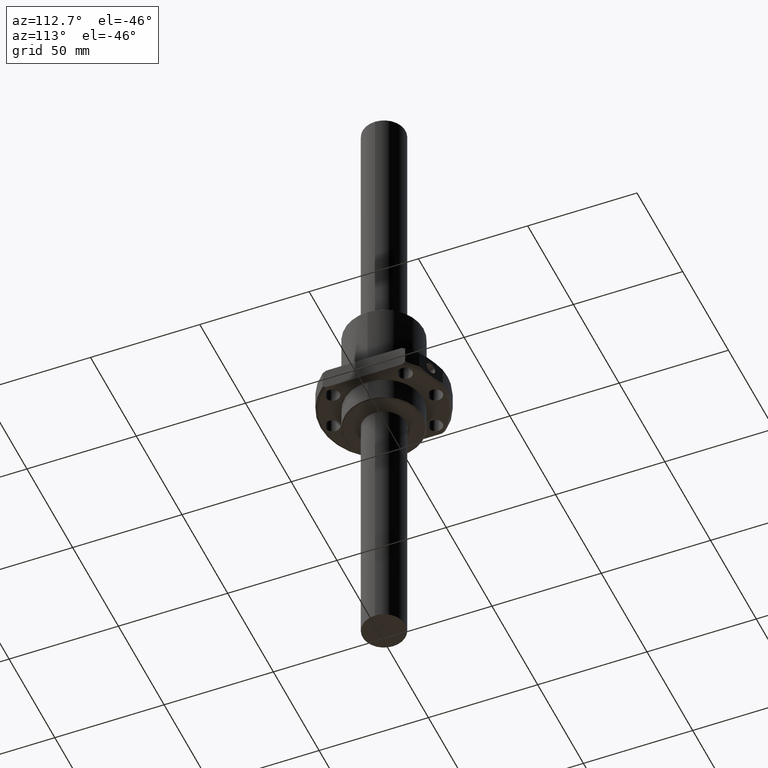
[diagram: clean part render]
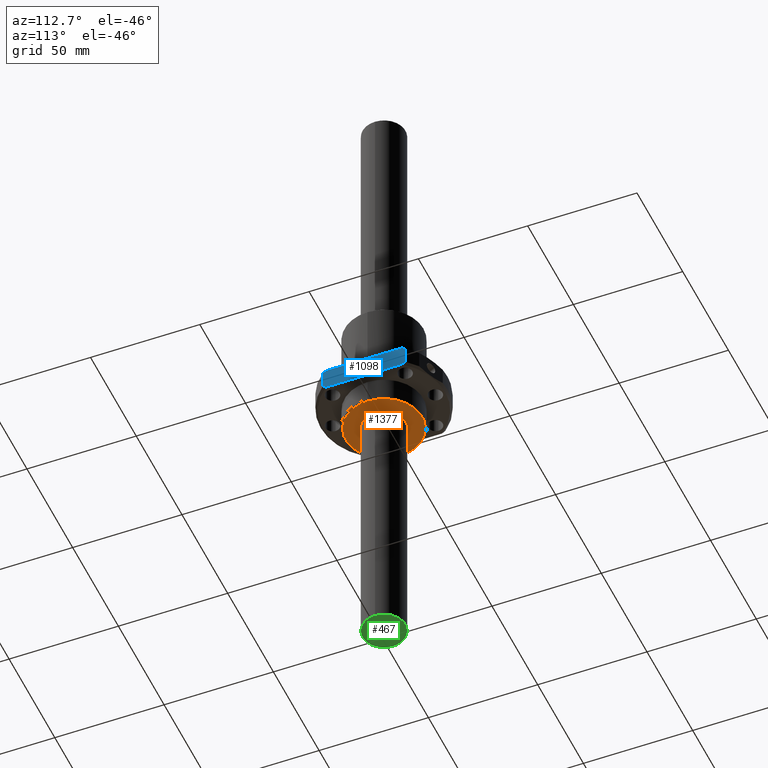
[diagram: same view with three faces highlighted in distinct colors, each labeled with its STEP entity id]
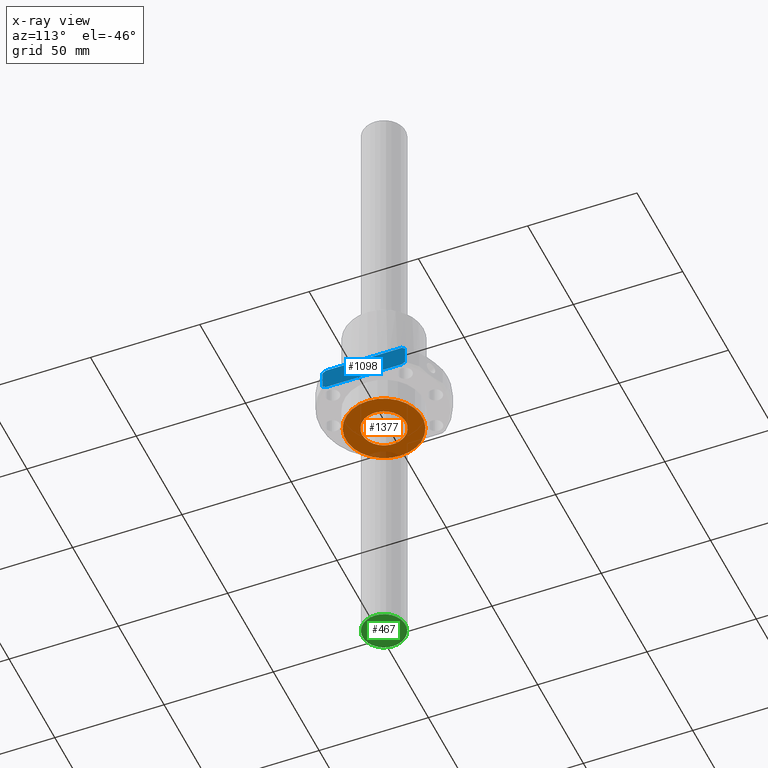
[diagram: x-ray of the same camera — body ghosted, the three highlighted faces saturated]
A machine part, auxiliary view with three faces highlighted in distinct colors.
The next image is the same camera in x-ray (body ghosted, the three faces saturated) — at least one of them is partly hidden behind the body in this view.
Their STEP definitions:

[orange] entity #1377 — the highlighted planar face has unit normal (0, 0, 1).
#61 = DIRECTION ( 'NONE',  ( 0.0000000000000000000, 0.0000000000000000000, -1.000000000000000000 ) ) ;
#259 = VERTEX_POINT ( 'NONE', #1360 ) ;
#271 = CARTESIAN_POINT ( 'NONE',  ( 0.0000000000000000000, 0.0000000000000000000, 0.0000000000000000000 ) ) ;
#466 = ORIENTED_EDGE ( 'NONE', *, *, #1770, .F. ) ;
#473 = VERTEX_POINT ( 'NONE', #1356 ) ;
#522 = ORIENTED_EDGE ( 'NONE', *, *, #1653, .F. ) ;
#534 = CIRCLE ( 'NONE', #565, 17.50000000000000000 ) ;
#565 = AXIS2_PLACEMENT_3D ( 'NONE', #271, #61, #1740 ) ;
#686 = CIRCLE ( 'NONE', #1188, 17.50000000000000000 ) ;
#719 = CARTESIAN_POINT ( 'NONE',  ( 0.0000000000000000000, 0.0000000000000000000, 0.0000000000000000000 ) ) ;
#740 = VERTEX_POINT ( 'NONE', #1357 ) ;
#756 = VERTEX_POINT ( 'NONE', #1851 ) ;
#774 = EDGE_LOOP ( 'NONE', ( #466, #931 ) ) ;
#877 = DIRECTION ( 'NONE',  ( 0.0000000000000000000, -1.000000000000000000, -3.469446951953615200E-016 ) ) ;
#905 = AXIS2_PLACEMENT_3D ( 'NONE', #1696, #1516, #1331 ) ;
#931 = ORIENTED_EDGE ( 'NONE', *, *, #1657, .F. ) ;
#984 = CIRCLE ( 'NONE', #1295, 10.00000000000000000 ) ;
#1009 = FACE_OUTER_BOUND ( 'NONE', #1674, .T. ) ;
#1066 = DIRECTION ( 'NONE',  ( 0.0000000000000000000, -3.469446951953614700E-016, 1.000000000000000000 ) ) ;
#1084 = EDGE_CURVE ( 'NONE', #473, #740, #534, .T. ) ;
#1104 = FACE_BOUND ( 'NONE', #774, .T. ) ;
#1132 = CIRCLE ( 'NONE', #1702, 10.00000000000000000 ) ;
#1188 = AXIS2_PLACEMENT_3D ( 'NONE', #719, #1628, #1454 ) ;
#1269 = CARTESIAN_POINT ( 'NONE',  ( 0.0000000000000000000, -1.873501354054951700E-014, 0.0000000000000000000 ) ) ;
#1295 = AXIS2_PLACEMENT_3D ( 'NONE', #1269, #1066, #877 ) ;
#1321 = DIRECTION ( 'NONE',  ( 0.0000000000000000000, -1.000000000000000000, -3.469446951953615200E-016 ) ) ;
#1331 = DIRECTION ( 'NONE',  ( -1.000000000000000000, 0.0000000000000000000, 0.0000000000000000000 ) ) ;
#1356 = CARTESIAN_POINT ( 'NONE',  ( -17.50000000000000000, 0.0000000000000000000, 0.0000000000000000000 ) ) ;
#1357 = CARTESIAN_POINT ( 'NONE',  ( 17.50000000000000000, 2.173748068486552000E-015, 0.0000000000000000000 ) ) ;
#1360 = CARTESIAN_POINT ( 'NONE',  ( 0.0000000000000000000, -10.00000000000002000, -3.469446951953615000E-015 ) ) ;
#1377 = ADVANCED_FACE ( 'NONE', ( #1104, #1009 ), #1864, .F. ) ;
#1452 = ORIENTED_EDGE ( 'NONE', *, *, #1084, .F. ) ;
#1454 = DIRECTION ( 'NONE',  ( -1.000000000000000000, 0.0000000000000000000, 0.0000000000000000000 ) ) ;
#1502 = DIRECTION ( 'NONE',  ( 0.0000000000000000000, -3.469446951953614700E-016, 1.000000000000000000 ) ) ;
#1516 = DIRECTION ( 'NONE',  ( 0.0000000000000000000, 0.0000000000000000000, -1.000000000000000000 ) ) ;
#1628 = DIRECTION ( 'NONE',  ( 0.0000000000000000000, 0.0000000000000000000, -1.000000000000000000 ) ) ;
#1653 = EDGE_CURVE ( 'NONE', #740, #473, #686, .T. ) ;
#1657 = EDGE_CURVE ( 'NONE', #756, #259, #984, .T. ) ;
#1674 = EDGE_LOOP ( 'NONE', ( #1452, #522 ) ) ;
#1685 = CARTESIAN_POINT ( 'NONE',  ( 0.0000000000000000000, -1.873501354054951700E-014, 0.0000000000000000000 ) ) ;
#1696 = CARTESIAN_POINT ( 'NONE',  ( 17.71000000000000100, -17.71000000000000100, 0.0000000000000000000 ) ) ;
#1702 = AXIS2_PLACEMENT_3D ( 'NONE', #1685, #1502, #1321 ) ;
#1740 = DIRECTION ( 'NONE',  ( -1.000000000000000000, 0.0000000000000000000, 0.0000000000000000000 ) ) ;
#1770 = EDGE_CURVE ( 'NONE', #259, #756, #1132, .T. ) ;
#1851 = CARTESIAN_POINT ( 'NONE',  ( 1.224646799147353300E-015, 9.999999999999980500, 3.469446951953615000E-015 ) ) ;
#1864 = PLANE ( 'NONE',  #905 ) ;

[blue] entity #1098 — the highlighted planar face has unit normal (1, 0, 0).
#10 = DIRECTION ( 'NONE',  ( -1.000000000000000000, 0.0000000000000000000, 0.0000000000000000000 ) ) ;
#63 = CARTESIAN_POINT ( 'NONE',  ( -22.00000000000000000, -17.32050807568884900, -20.99999999999995700 ) ) ;
#98 = CARTESIAN_POINT ( 'NONE',  ( -22.00000000000000000, -18.89444362768589200, -20.00000000010405200 ) ) ;
#121 = VECTOR ( 'NONE', #1317, 1000.000000000000000 ) ;
#127 = ORIENTED_EDGE ( 'NONE', *, *, #184, .T. ) ;
#184 = EDGE_CURVE ( 'NONE', #1013, #1160, #839, .T. ) ;
#193 = VERTEX_POINT ( 'NONE', #98 ) ;
#219 = CARTESIAN_POINT ( 'NONE',  ( -22.00000000000000000, 18.88509237199999500, -21.00000000000000000 ) ) ;
#225 = CARTESIAN_POINT ( 'NONE',  ( -22.00000000000000000, -18.89444362784559700, -12.00000000010060800 ) ) ;
#235 = CARTESIAN_POINT ( 'NONE',  ( -21.99999999948275300, 18.88509237322118800, -11.99390822090630400 ) ) ;
#247 = ORIENTED_EDGE ( 'NONE', *, *, #1496, .T. ) ;
#255 = CARTESIAN_POINT ( 'NONE',  ( -22.00000000000000000, 17.32050807568884900, -20.99999999999995700 ) ) ;
#288 = EDGE_LOOP ( 'NONE', ( #1660, #127, #247, #673, #1760, #819, #1689, #713 ) ) ;
#370 = CARTESIAN_POINT ( 'NONE',  ( -22.00000000000000000, 17.32050807875655000, -11.00000000189768900 ) ) ;
#379 = EDGE_CURVE ( 'NONE', #483, #1013, #490, .T. ) ;
#402 = VERTEX_POINT ( 'NONE', #1200 ) ;
#422 = VECTOR ( 'NONE', #1223, 1000.000000000000000 ) ;
#429 = CARTESIAN_POINT ( 'NONE',  ( -22.00000000000000000, -18.37361340431810300, -11.66066216224973000 ) ) ;
#447 = DIRECTION ( 'NONE',  ( -0.0000000000000000000, -0.0000000000000000000, -1.000000000000000000 ) ) ;
#460 = CARTESIAN_POINT ( 'NONE',  ( -22.00000000000000000, 17.32050807568884900, -20.99999999999995700 ) ) ;
#483 = VERTEX_POINT ( 'NONE', #1602 ) ;
#490 = B_SPLINE_CURVE_WITH_KNOTS ( 'NONE', 3,
 ( #225, #429, #610, #812 ),
 .UNSPECIFIED., .F., .F.,
 ( 4, 4 ),
 ( 0.0000000000000000000, 0.001864744786621992400 ),
 .UNSPECIFIED. ) ;
#604 = VECTOR ( 'NONE', #447, 1000.000000000000000 ) ;
#610 = CARTESIAN_POINT ( 'NONE',  ( -22.00000000000000000, -17.84916383594375200, -11.32702094158373300 ) ) ;
#624 = EDGE_CURVE ( 'NONE', #1686, #193, #1079, .T. ) ;
#626 = DIRECTION ( 'NONE',  ( 0.0000000000000000000, -1.000000000000000000, 0.0000000000000000000 ) ) ;
#638 = CARTESIAN_POINT ( 'NONE',  ( -21.99999999896550300, 18.88509237289571600, -16.00000000000000000 ) ) ;
#653 = CARTESIAN_POINT ( 'NONE',  ( -22.00000000000000000, 17.84599962121611200, -20.67493640860165600 ) ) ;
#668 = VERTEX_POINT ( 'NONE', #235 ) ;
#673 = ORIENTED_EDGE ( 'NONE', *, *, #1802, .T. ) ;
#713 = ORIENTED_EDGE ( 'NONE', *, *, #760, .T. ) ;
#760 = EDGE_CURVE ( 'NONE', #193, #483, #1677, .T. ) ;
#789 = CARTESIAN_POINT ( 'NONE',  ( -22.00000000000000000, -17.32050807505899200, -10.99999999961042000 ) ) ;
#793 = B_SPLINE_CURVE_WITH_KNOTS ( 'NONE', 3,
 ( #1738, #1571, #1384, #1192 ),
 .UNSPECIFIED., .F., .F.,
 ( 4, 4 ),
 ( 0.0000000000000000000, 0.001853585053054498300 ),
 .UNSPECIFIED. ) ;
#812 = CARTESIAN_POINT ( 'NONE',  ( -22.00000000000000000, -17.32050807505899200, -10.99999999961042000 ) ) ;
#819 = ORIENTED_EDGE ( 'NONE', *, *, #1744, .T. ) ;
#828 = CARTESIAN_POINT ( 'NONE',  ( -22.00000000000000000, -0.004675628000003553800, -21.00000000000000000 ) ) ;
#839 = LINE ( 'NONE', #1030, #422 ) ;
#841 = LINE ( 'NONE', #638, #604 ) ;
#858 = CARTESIAN_POINT ( 'NONE',  ( -21.99999999965957500, 18.36733551440209700, -20.34333110581565100 ) ) ;
#1013 = VERTEX_POINT ( 'NONE', #789 ) ;
#1024 = CARTESIAN_POINT ( 'NONE',  ( -22.00000000000000000, -17.32050807568884900, -20.99999999999995700 ) ) ;
#1030 = CARTESIAN_POINT ( 'NONE',  ( -22.00000000000000000, -0.004675628000003553800, -11.00000000000000000 ) ) ;
#1079 = B_SPLINE_CURVE_WITH_KNOTS ( 'NONE', 3,
 ( #63, #1741, #1576, #1392 ),
 .UNSPECIFIED., .F., .F.,
 ( 4, 4 ),
 ( 6.181670683826199300E-013, 0.001864744787562266300 ),
 .UNSPECIFIED. ) ;
#1080 = EDGE_CURVE ( 'NONE', #402, #1841, #1206, .T. ) ;
#1098 = ADVANCED_FACE ( 'NONE', ( #1310 ), #1573, .T. ) ;
#1160 = VERTEX_POINT ( 'NONE', #370 ) ;
#1192 = CARTESIAN_POINT ( 'NONE',  ( -21.99999999948275300, 18.88509237322118800, -11.99390822090630400 ) ) ;
#1200 = CARTESIAN_POINT ( 'NONE',  ( -21.99999999951574700, 18.88509237253951100, -20.00609177951266600 ) ) ;
#1206 = B_SPLINE_CURVE_WITH_KNOTS ( 'NONE', 3,
 ( #1610, #858, #653, #460 ),
 .UNSPECIFIED., .F., .F.,
 ( 4, 4 ),
 ( 0.0000000000000000000, 0.001853585055198404700 ),
 .UNSPECIFIED. ) ;
#1215 = LINE ( 'NONE', #828, #1434 ) ;
#1223 = DIRECTION ( 'NONE',  ( -0.0000000000000000000, 1.000000000000000000, -0.0000000000000000000 ) ) ;
#1310 = FACE_OUTER_BOUND ( 'NONE', #288, .T. ) ;
#1317 = DIRECTION ( 'NONE',  ( 0.0000000000000000000, 0.0000000000000000000, 1.000000000000000000 ) ) ;
#1384 = CARTESIAN_POINT ( 'NONE',  ( -22.00000000000000000, 18.36733551638056400, -11.65666889523874200 ) ) ;
#1392 = CARTESIAN_POINT ( 'NONE',  ( -22.00000000000000000, -18.89444362768589200, -20.00000000010405200 ) ) ;
#1434 = VECTOR ( 'NONE', #626, 1000.000000000000000 ) ;
#1495 = CARTESIAN_POINT ( 'NONE',  ( -22.00000000000000000, -18.89444362800000500, -16.00000000000000000 ) ) ;
#1496 = EDGE_CURVE ( 'NONE', #1160, #668, #793, .T. ) ;
#1538 = AXIS2_PLACEMENT_3D ( 'NONE', #219, #10, #1706 ) ;
#1571 = CARTESIAN_POINT ( 'NONE',  ( -21.99999999918073000, 17.84599962297715000, -11.32506359303774300 ) ) ;
#1573 = PLANE ( 'NONE',  #1538 ) ;
#1576 = CARTESIAN_POINT ( 'NONE',  ( -22.00000000000000000, -18.37361340512277900, -20.33933783723520600 ) ) ;
#1602 = CARTESIAN_POINT ( 'NONE',  ( -22.00000000000000000, -18.89444362784559700, -12.00000000010060800 ) ) ;
#1610 = CARTESIAN_POINT ( 'NONE',  ( -21.99999999951574700, 18.88509237253951100, -20.00609177951266600 ) ) ;
#1660 = ORIENTED_EDGE ( 'NONE', *, *, #379, .T. ) ;
#1677 = LINE ( 'NONE', #1495, #121 ) ;
#1686 = VERTEX_POINT ( 'NONE', #1024 ) ;
#1689 = ORIENTED_EDGE ( 'NONE', *, *, #624, .T. ) ;
#1706 = DIRECTION ( 'NONE',  ( 0.0000000000000000000, -1.000000000000000000, 0.0000000000000000000 ) ) ;
#1738 = CARTESIAN_POINT ( 'NONE',  ( -22.00000000000000000, 17.32050807875655000, -11.00000000189768900 ) ) ;
#1741 = CARTESIAN_POINT ( 'NONE',  ( -22.00000000000000000, -17.84916383676515000, -20.67297905789960000 ) ) ;
#1744 = EDGE_CURVE ( 'NONE', #1841, #1686, #1215, .T. ) ;
#1760 = ORIENTED_EDGE ( 'NONE', *, *, #1080, .T. ) ;
#1802 = EDGE_CURVE ( 'NONE', #668, #402, #841, .T. ) ;
#1841 = VERTEX_POINT ( 'NONE', #255 ) ;

[green] entity #467 — the highlighted planar face has unit normal (0, 0, -1).
#80 = AXIS2_PLACEMENT_3D ( 'NONE', #1566, #1185, #995 ) ;
#179 = ORIENTED_EDGE ( 'NONE', *, *, #1388, .T. ) ;
#182 = DIRECTION ( 'NONE',  ( 0.0000000000000000000, 0.0000000000000000000, -1.000000000000000000 ) ) ;
#196 = FACE_OUTER_BOUND ( 'NONE', #1385, .T. ) ;
#241 = CIRCLE ( 'NONE', #1050, 9.800000000000000700 ) ;
#388 = CARTESIAN_POINT ( 'NONE',  ( 9.917600000000000200, -9.917600000000000200, -300.0000000000000000 ) ) ;
#467 = ADVANCED_FACE ( 'NONE', ( #196 ), #1191, .T. ) ;
#589 = AXIS2_PLACEMENT_3D ( 'NONE', #388, #182, #973 ) ;
#614 = VERTEX_POINT ( 'NONE', #1475 ) ;
#677 = CIRCLE ( 'NONE', #80, 9.800000000000000700 ) ;
#907 = CARTESIAN_POINT ( 'NONE',  ( -9.800000000000000700, 1.200153863164406300E-015, -300.0000000000000000 ) ) ;
#961 = EDGE_CURVE ( 'NONE', #614, #1208, #677, .T. ) ;
#973 = DIRECTION ( 'NONE',  ( -1.000000000000000000, 0.0000000000000000000, 0.0000000000000000000 ) ) ;
#995 = DIRECTION ( 'NONE',  ( 1.000000000000000000, 0.0000000000000000000, 0.0000000000000000000 ) ) ;
#1050 = AXIS2_PLACEMENT_3D ( 'NONE', #1470, #1294, #1090 ) ;
#1090 = DIRECTION ( 'NONE',  ( 1.000000000000000000, 0.0000000000000000000, 0.0000000000000000000 ) ) ;
#1185 = DIRECTION ( 'NONE',  ( -0.0000000000000000000, -0.0000000000000000000, -1.000000000000000000 ) ) ;
#1191 = PLANE ( 'NONE',  #589 ) ;
#1208 = VERTEX_POINT ( 'NONE', #907 ) ;
#1294 = DIRECTION ( 'NONE',  ( -0.0000000000000000000, -0.0000000000000000000, -1.000000000000000000 ) ) ;
#1385 = EDGE_LOOP ( 'NONE', ( #1788, #179 ) ) ;
#1388 = EDGE_CURVE ( 'NONE', #1208, #614, #241, .T. ) ;
#1470 = CARTESIAN_POINT ( 'NONE',  ( 0.0000000000000000000, 0.0000000000000000000, -300.0000000000000000 ) ) ;
#1475 = CARTESIAN_POINT ( 'NONE',  ( 9.800000000000000700, 0.0000000000000000000, -300.0000000000000000 ) ) ;
#1566 = CARTESIAN_POINT ( 'NONE',  ( 0.0000000000000000000, 0.0000000000000000000, -300.0000000000000000 ) ) ;
#1788 = ORIENTED_EDGE ( 'NONE', *, *, #961, .T. ) ;